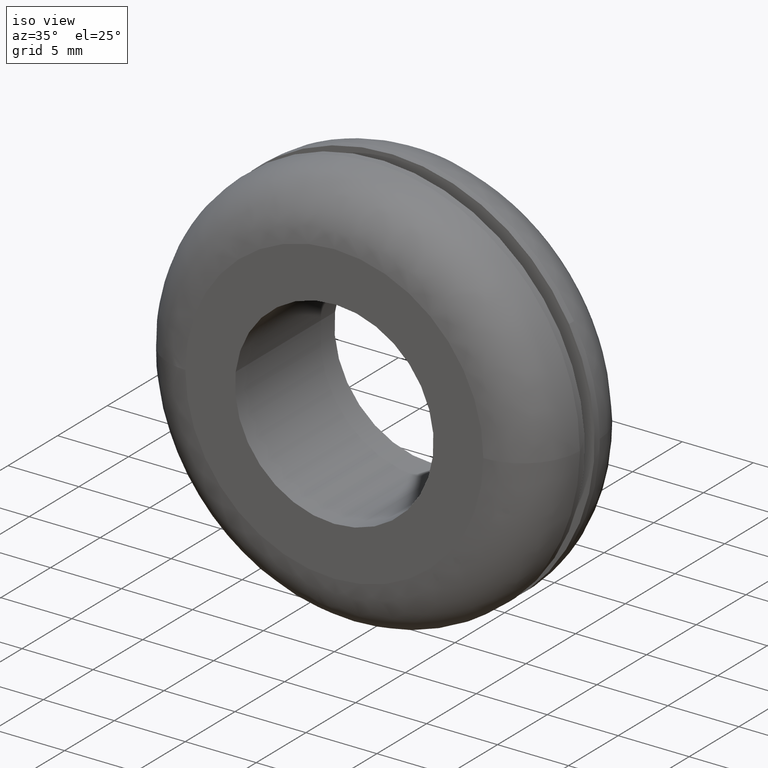
[diagram: clean part render]
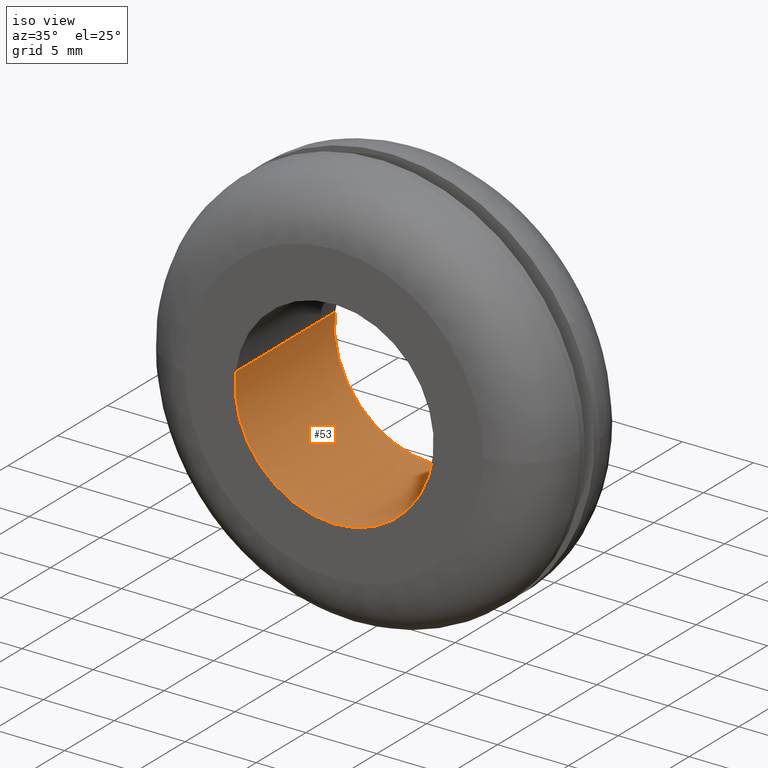
[diagram: same view with one face highlighted and labeled with its STEP entity id]
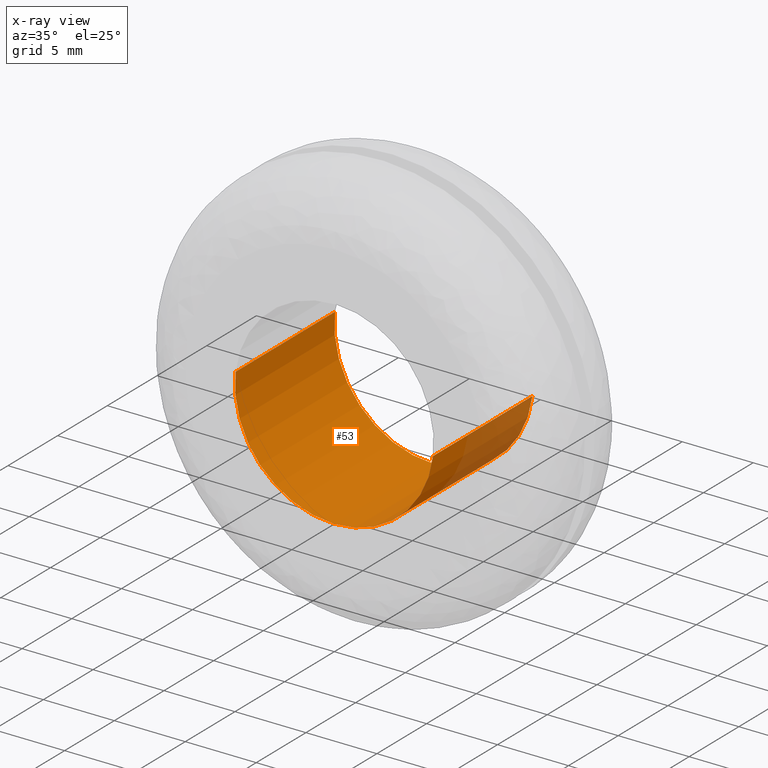
[diagram: x-ray of the same camera — body ghosted, the highlighted face saturated]
A machine part, iso view. The second image highlights one B-rep face of the part: STEP entity #53.
The next image is the same camera in x-ray: the body ghosted, the highlighted face saturated — about 10% of this face is hidden behind the body in this view.
In plain terms, the highlighted cylindrical surface (partial cylindrical patch) has radius 7 mm, axis along (-0, 1, -0).
Its self-contained STEP definition (entity closure, byte-faithful):
#53=ADVANCED_FACE('',(#191),#190,.F.);
#190=CYLINDRICAL_SURFACE('',#376,7.00000000000E+000);
#191=FACE_OUTER_BOUND('',#377,.T.);
#373=CARTESIAN_POINT('',(-4.08316032339E-015,1.02500000000E+001,-3.28285686673E-014));
#374=DIRECTION('',(-8.36062553645E-016,1.00000000000E+000,-5.95874113188E-015));
#375=DIRECTION('',(-9.93009526364E-001,-1.26882631386E-016,1.18034234657E-001));
#376=AXIS2_PLACEMENT_3D('',#373,#374,#375);
#377=EDGE_LOOP('',(#470,#471,#472,#473,#474,#475));
#470=ORIENTED_EDGE('',*,*,#505,.F.);
#471=ORIENTED_EDGE('',*,*,#507,.F.);
#472=ORIENTED_EDGE('',*,*,#537,.F.);
#473=ORIENTED_EDGE('',*,*,#511,.T.);
#474=ORIENTED_EDGE('',*,*,#513,.T.);
#475=ORIENTED_EDGE('',*,*,#538,.T.);
#505=EDGE_CURVE('',#646,#647,#648,.T.);
#507=EDGE_CURVE('',#654,#646,#661,.T.);
#511=EDGE_CURVE('',#688,#689,#690,.T.);
#513=EDGE_CURVE('',#689,#696,#703,.T.);
#537=EDGE_CURVE('',#688,#654,#862,.T.);
#538=EDGE_CURVE('',#696,#647,#868,.T.);
#646=VERTEX_POINT('',#961);
#647=VERTEX_POINT('',#962);
#648=CIRCLE('',#966,6.99999999999E+000);
#654=VERTEX_POINT('',#967);
#661=CIRCLE('',#975,6.99999999999E+000);
#688=VERTEX_POINT('',#991);
#689=VERTEX_POINT('',#992);
#690=CIRCLE('',#996,6.99999999999E+000);
#696=VERTEX_POINT('',#997);
#703=CIRCLE('',#1005,6.99999999999E+000);
#862=(BOUNDED_CURVE() B_SPLINE_CURVE(1,(#1107,#1108),.UNSPECIFIED.,.F.,.F.) B_SPLINE_CURVE_WITH_KNOTS((2,2),(8.33333343261E-002,9.16666667006E-001),.UNSPECIFIED.) CURVE() GEOMETRIC_REPRESENTATION_ITEM() RATIONAL_B_SPLINE_CURVE((1.00000000000E+000,1.00000000000E+000)) REPRESENTATION_ITEM('') );
#868=(BOUNDED_CURVE() B_SPLINE_CURVE(1,(#1109,#1110),.UNSPECIFIED.,.F.,.F.) B_SPLINE_CURVE_WITH_KNOTS((2,2),(8.33333333333E-002,9.16666666667E-001),.UNSPECIFIED.) CURVE() GEOMETRIC_REPRESENTATION_ITEM() RATIONAL_B_SPLINE_CURVE((7.50000000000E-001,7.50000000000E-001)) REPRESENTATION_ITEM('') );
#961=CARTESIAN_POINT('',(3.33066907388E-016,1.00000000000E+001,-6.99999999998E+000));
#962=CARTESIAN_POINT('',(6.95092377633E+000,1.00000000000E+001,-8.27441028414E-001));
#963=CARTESIAN_POINT('',(5.63415980537E-012,1.00000000000E+001,1.24025234527E-011));
#964=DIRECTION('',(-1.69452111668E-014,-1.00000000000E+000,-1.12460738264E-013));
#965=DIRECTION('',(-8.04453725856E-013,1.12460738264E-013,-1.00000000000E+000));
#966=AXIS2_PLACEMENT_3D('',#963,#964,#965);
#967=CARTESIAN_POINT('',(-6.95106698668E+000,1.00000000000E+001,8.26237100630E-001));
#972=CARTESIAN_POINT('',(5.63415980537E-012,1.00000000000E+001,1.24025234527E-011));
#973=DIRECTION('',(-1.69452111668E-014,-1.00000000000E+000,-1.12460738264E-013));
#974=DIRECTION('',(-8.04453725856E-013,1.12460738264E-013,-1.00000000000E+000));
#975=AXIS2_PLACEMENT_3D('',#972,#973,#974);
#991=CARTESIAN_POINT('',(-6.95106698668E+000,-1.05064081744E-015,8.26237100631E-001));
#992=CARTESIAN_POINT('',(-2.88657986403E-015,8.55860199022E-016,-6.99999999998E+000));
#993=CARTESIAN_POINT('',(5.49826850715E-012,-1.10942576381E-015,1.21036514145E-011));
#994=DIRECTION('',(-4.18288671021E-017,-1.00000000000E+000,-2.80755137548E-016));
#995=DIRECTION('',(-7.85524423286E-013,2.80755137549E-016,-1.00000000000E+000));
#996=AXIS2_PLACEMENT_3D('',#993,#994,#995);
#997=CARTESIAN_POINT('',(6.95092377633E+000,-1.16786671094E-015,-8.27441028414E-001));
#1002=CARTESIAN_POINT('',(5.49826850715E-012,-1.10942576381E-015,1.21036514145E-011));
#1003=DIRECTION('',(-4.18288671021E-017,-1.00000000000E+000,-2.80755137548E-016));
#1004=DIRECTION('',(-7.85524423286E-013,2.80755137549E-016,-1.00000000000E+000));
#1005=AXIS2_PLACEMENT_3D('',#1002,#1003,#1004);
#1107=CARTESIAN_POINT('',(-6.95106668455E+000,1.19128384934E-008,8.26239642597E-001));
#1108=CARTESIAN_POINT('',(-6.95106668455E+000,1.00000000041E+001,8.26239642597E-001));
#1109=CARTESIAN_POINT('',(6.95106668455E+000,-2.96059473233E-016,-8.26239642597E-001));
#1110=CARTESIAN_POINT('',(6.95106668455E+000,1.00000000000E+001,-8.26239642597E-001));